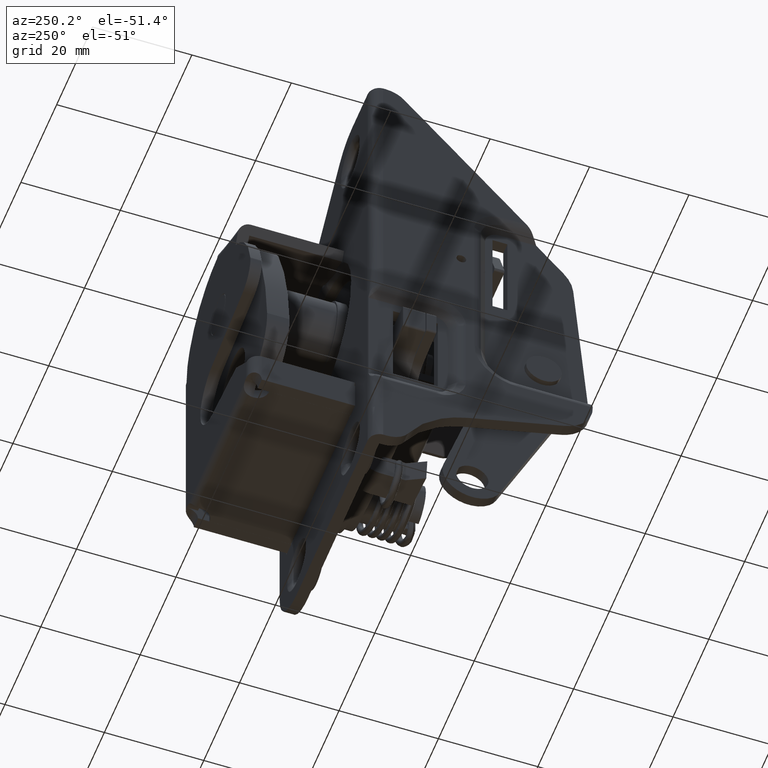
[diagram: clean part render]
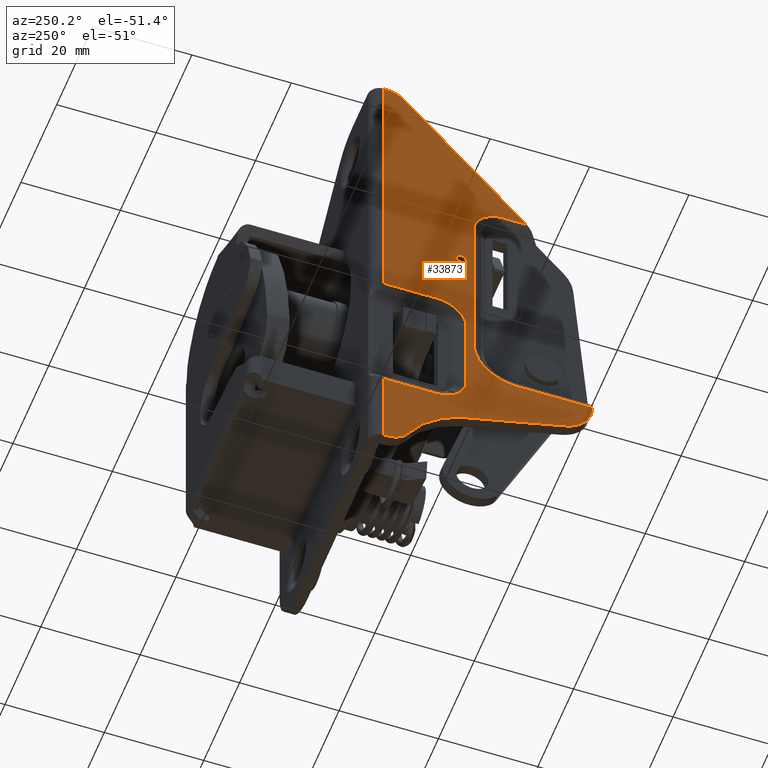
[diagram: same view with one face highlighted and labeled with its STEP entity id]
A machine part, auxiliary view. The second image highlights one B-rep face of the part: STEP entity #33873.
In plain terms, the highlighted face is a freeform B-spline surface patch.
Its self-contained STEP definition (entity closure, byte-faithful):
#27239=CARTESIAN_POINT('',(1.419714E-017,16.283349330598838,25.697431335802619));
#27240=VERTEX_POINT('',#27239);
#27246=CARTESIAN_POINT('',(0.0,17.0,26.0));
#27247=VERTEX_POINT('',#27246);
#27248=CARTESIAN_POINT('',(0.0,17.0,26.0));
#27249=CARTESIAN_POINT('',(1.978550E-018,16.900125733382779,26.000029547339441));
#27250=CARTESIAN_POINT('',(7.254840E-018,16.633786415291109,25.959819011314710));
#27251=CARTESIAN_POINT('',(1.190176E-017,16.399216609102151,25.817069460072851));
#27252=CARTESIAN_POINT('',(1.419714E-017,16.283349330598838,25.697431335802619));
#27253=B_SPLINE_CURVE_WITH_KNOTS('',3,(#27248,#27249,#27250,#27251,#27252),.UNSPECIFIED.,.F.,.U.,(4,1,4),(0.000000076723326,0.299637238209509,0.799009191752111),.UNSPECIFIED.);
#27254=EDGE_CURVE('',#27247,#27240,#27253,.T.);
#27256=CARTESIAN_POINT('',(0.0,17.999999999996358,25.000002700771301));
#27257=VERTEX_POINT('',#27256);
#27258=CARTESIAN_POINT('',(0.0,17.999999999996358,25.000002700771301));
#27259=CARTESIAN_POINT('',(0.0,18.000112848320640,25.122738762137288));
#27260=CARTESIAN_POINT('',(0.0,17.961843882105320,25.327180044209911));
#27261=CARTESIAN_POINT('',(0.0,17.821957639316711,25.588878455707441));
#27262=CARTESIAN_POINT('',(0.0,17.619718561186961,25.806728343205432));
#27263=CARTESIAN_POINT('',(0.0,17.335436932095931,25.963164026423929));
#27264=CARTESIAN_POINT('',(0.0,17.106352691545570,26.000039462947090));
#27265=CARTESIAN_POINT('',(0.0,17.0,26.0));
#27266=B_SPLINE_CURVE_WITH_KNOTS('',3,(#27258,#27259,#27260,#27261,#27262,#27263,#27264,#27265),.UNSPECIFIED.,.F.,.U.,(4,1,1,1,1,4),(0.000000281844217,0.368163191423545,0.613610741273622,0.883566257270461,1.251766178606309,1.570834222152832),.UNSPECIFIED.);
#27267=EDGE_CURVE('',#27257,#27247,#27266,.T.);
#27269=CARTESIAN_POINT('',(0.0,17.0,24.0));
#27270=VERTEX_POINT('',#27269);
#27271=CARTESIAN_POINT('',(0.0,17.0,24.0));
#27272=CARTESIAN_POINT('',(0.0,17.122736333625610,23.999889343013368));
#27273=CARTESIAN_POINT('',(0.0,17.327170617699501,24.038160849404779));
#27274=CARTESIAN_POINT('',(0.0,17.625305952941570,24.197411173478500));
#27275=CARTESIAN_POINT('',(0.0,17.843834262327459,24.426898267956751));
#27276=CARTESIAN_POINT('',(0.0,17.974435839994499,24.721856909492370));
#27277=CARTESIAN_POINT('',(0.0,18.000024125343192,24.910012288192220));
#27278=CARTESIAN_POINT('',(0.0,17.999999999996358,25.000002700771301));
#27279=B_SPLINE_CURVE_WITH_KNOTS('',3,(#27271,#27272,#27273,#27274,#27275,#27276,#27277,#27278),.UNSPECIFIED.,.F.,.U.,(4,1,1,1,1,4),(0.000000278164679,0.368163901596766,0.613611931807633,1.006310286854506,1.300859443302401,1.570837266627507),.UNSPECIFIED.);
#27280=EDGE_CURVE('',#27270,#27257,#27279,.T.);
#27282=CARTESIAN_POINT('',(1.387779E-017,16.262722094306859,24.324409417603459));
#27283=VERTEX_POINT('',#27282);
#27284=CARTESIAN_POINT('',(1.387779E-017,16.262722094306859,24.324409417603459));
#27285=CARTESIAN_POINT('',(1.168635E-017,16.379145231748112,24.196678181982360));
#27286=CARTESIAN_POINT('',(7.152616E-018,16.620006731859458,24.043285361546491));
#27287=CARTESIAN_POINT('',(1.950586E-018,16.896372226024940,23.999961610233399));
#27288=CARTESIAN_POINT('',(0.0,17.0,24.0));
#27289=B_SPLINE_CURVE_WITH_KNOTS('',3,(#27284,#27285,#27286,#27287,#27288),.UNSPECIFIED.,.F.,.U.,(4,1,4),(0.000000073294715,0.518148439487856,0.829054960137383),.UNSPECIFIED.);
#27290=EDGE_CURVE('',#27283,#27270,#27289,.T.);
#27369=CARTESIAN_POINT('',(0.0,16.000000000003649,24.999997299228710));
#27370=VERTEX_POINT('',#27369);
#27371=CARTESIAN_POINT('',(0.0,16.000000000003649,24.999997299228710));
#27372=CARTESIAN_POINT('',(2.381095E-018,15.999929392125290,24.884082516545519));
#27373=CARTESIAN_POINT('',(7.458836E-018,16.043478793940661,24.636891674295370));
#27374=CARTESIAN_POINT('',(1.189021E-017,16.173867045975442,24.421167198646920));
#27375=CARTESIAN_POINT('',(1.387779E-017,16.262722094306859,24.324409417603459));
#27376=B_SPLINE_CURVE_WITH_KNOTS('',3,(#27371,#27372,#27373,#27374,#27375),.UNSPECIFIED.,.F.,.U.,(4,1,4),(0.000000053009387,0.347725959978242,0.741778975951771),.UNSPECIFIED.);
#27377=EDGE_CURVE('',#27370,#27283,#27376,.T.);
#27379=CARTESIAN_POINT('',(1.419714E-017,16.283349330598838,25.697431335802619));
#27380=CARTESIAN_POINT('',(1.279013E-017,16.216040811907710,25.628312020153171));
#27381=CARTESIAN_POINT('',(8.504259E-018,16.063497307439199,25.417768433751590));
#27382=CARTESIAN_POINT('',(3.274829E-018,15.999640118822070,25.160872970695650));
#27383=CARTESIAN_POINT('',(0.0,16.000000000003649,24.999997299228710));
#27384=B_SPLINE_CURVE_WITH_KNOTS('',3,(#27379,#27380,#27381,#27382,#27383),.UNSPECIFIED.,.F.,.U.,(4,1,4),(0.000000064619101,0.289443693527321,0.771828758472372),.UNSPECIFIED.);
#27385=EDGE_CURVE('',#27240,#27370,#27384,.T.);
#28997=CARTESIAN_POINT('',(0.0,32.700000000000003,10.952691193458120));
#28998=VERTEX_POINT('',#28997);
#29068=CARTESIAN_POINT('',(0.0,32.700000000000003,-17.952691193458101));
#29069=VERTEX_POINT('',#29068);
#29167=CARTESIAN_POINT('',(0.0,5.500000000000000,-8.952691193458040));
#29168=VERTEX_POINT('',#29167);
#29180=CARTESIAN_POINT('',(0.0,-9.450205466200819,-8.952691193458032));
#29181=VERTEX_POINT('',#29180);
#29182=CARTESIAN_POINT('',(0.0,5.500000000000000,-8.952691193458040));
#29183=CARTESIAN_POINT('',(0.0,-9.450205466200819,-8.952691193458032));
#29184=QUASI_UNIFORM_CURVE('',1,(#29182,#29183),.UNSPECIFIED.,.F.,.U.);
#29185=EDGE_CURVE('',#29168,#29181,#29184,.T.);
#29231=CARTESIAN_POINT('',(0.0,14.452691193458120,8.526513E-014));
#29232=VERTEX_POINT('',#29231);
#29244=CARTESIAN_POINT('',(0.0,14.452691193458120,8.526513E-014));
#29245=CARTESIAN_POINT('',(0.0,14.452888047882061,-0.732458276530794));
#29246=CARTESIAN_POINT('',(0.0,14.303499560320800,-1.940879319837317));
#29247=CARTESIAN_POINT('',(0.0,13.740063168773480,-3.611922105931522));
#29248=CARTESIAN_POINT('',(0.0,13.073716274471639,-4.840373025294561));
#29249=CARTESIAN_POINT('',(0.0,12.162824194807550,-6.037586426338524));
#29250=CARTESIAN_POINT('',(0.0,11.150094508349470,-7.001799874503031));
#29251=CARTESIAN_POINT('',(0.0,9.898220587559207,-7.838229307985565));
#29252=CARTESIAN_POINT('',(0.0,8.599237583223218,-8.442914151816376));
#29253=CARTESIAN_POINT('',(0.0,7.111341544849974,-8.854630042437410));
#29254=CARTESIAN_POINT('',(0.0,6.049327049475961,-8.952749881377976));
#29255=CARTESIAN_POINT('',(0.0,5.500000000000000,-8.952691193458040));
#29256=B_SPLINE_CURVE_WITH_KNOTS('',3,(#29244,#29245,#29246,#29247,#29248,#29249,#29250,#29251,#29252,#29253,#29254,#29255),.UNSPECIFIED.,.F.,.U.,(4,1,1,1,1,1,1,1,1,4),(0.000000091344646,2.197323560096953,3.625603969368036,5.273619080635767,6.372272558643863,8.130113154966562,9.448537441364106,10.876812100355050,12.414964910769370,14.062942680058100),.UNSPECIFIED.);
#29257=EDGE_CURVE('',#29232,#29168,#29256,.T.);
#29291=CARTESIAN_POINT('',(0.0,14.452691193458120,35.0));
#29292=VERTEX_POINT('',#29291);
#29304=CARTESIAN_POINT('',(0.0,14.452691193458120,35.0));
#29305=CARTESIAN_POINT('',(0.0,14.452691193458120,8.526513E-014));
#29306=QUASI_UNIFORM_CURVE('',1,(#29304,#29305),.UNSPECIFIED.,.F.,.U.);
#29307=EDGE_CURVE('',#29292,#29232,#29306,.T.);
#29335=CARTESIAN_POINT('',(0.0,8.500000000000000,40.952691193458101));
#29336=VERTEX_POINT('',#29335);
#29347=CARTESIAN_POINT('',(0.0,8.500000000000000,40.952691193458101));
#29348=CARTESIAN_POINT('',(0.0,8.962657523383950,40.952792261028883));
#29349=CARTESIAN_POINT('',(0.0,9.668757335024830,40.869928497767241));
#29350=CARTESIAN_POINT('',(0.0,10.766033260378890,40.537109117600380));
#29351=CARTESIAN_POINT('',(0.0,11.685121071081900,40.074489090242103));
#29352=CARTESIAN_POINT('',(0.0,12.590662138058240,39.367731560310503));
#29353=CARTESIAN_POINT('',(0.0,13.340971939035660,38.529673280201223));
#29354=CARTESIAN_POINT('',(0.0,13.914024912913710,37.560150495116147));
#29355=CARTESIAN_POINT('',(0.0,14.342137965103531,36.363525650079303));
#29356=CARTESIAN_POINT('',(0.0,14.452859761404451,35.511367873598168));
#29357=CARTESIAN_POINT('',(0.0,14.452691193458120,35.0));
#29358=B_SPLINE_CURVE_WITH_KNOTS('',3,(#29347,#29348,#29349,#29350,#29351,#29352,#29353,#29354,#29355,#29356,#29357),.UNSPECIFIED.,.F.,.U.,(4,1,1,1,1,1,1,1,4),(0.000000123463044,1.387947787412965,2.118478463169031,3.433415868488113,4.456113533958796,5.551872501632872,6.793741497036548,7.816471655958068,9.350524131440539),.UNSPECIFIED.);
#29359=EDGE_CURVE('',#29336,#29292,#29358,.T.);
#29394=CARTESIAN_POINT('',(0.0,3.857822074112350,40.952691193458101));
#29395=VERTEX_POINT('',#29394);
#29409=CARTESIAN_POINT('',(0.0,3.857822074112350,40.952691193458101));
#29410=CARTESIAN_POINT('',(0.0,8.500000000000000,40.952691193458101));
#29411=QUASI_UNIFORM_CURVE('',1,(#29409,#29410),.UNSPECIFIED.,.F.,.U.);
#29412=EDGE_CURVE('',#29395,#29336,#29411,.T.);
#29437=CARTESIAN_POINT('',(0.0,22.0,-17.952691193458101));
#29438=VERTEX_POINT('',#29437);
#29439=CARTESIAN_POINT('',(0.0,32.700000000000003,-17.952691193458101));
#29440=CARTESIAN_POINT('',(0.0,22.0,-17.952691193458101));
#29441=QUASI_UNIFORM_CURVE('',1,(#29439,#29440),.UNSPECIFIED.,.F.,.U.);
#29442=EDGE_CURVE('',#29069,#29438,#29441,.T.);
#29482=CARTESIAN_POINT('',(0.0,16.047308806541899,-12.0));
#29483=VERTEX_POINT('',#29482);
#29506=CARTESIAN_POINT('',(0.0,22.0,-17.952691193458101));
#29507=CARTESIAN_POINT('',(0.0,21.634749118441601,-17.952724752475710));
#29508=CARTESIAN_POINT('',(0.0,20.879898801779490,-17.883016709020541));
#29509=CARTESIAN_POINT('',(0.0,19.916422546005801,-17.603621520092769));
#29510=CARTESIAN_POINT('',(0.0,19.012202960934690,-17.175934155681500));
#29511=CARTESIAN_POINT('',(0.0,18.161732315490749,-16.600152255128108));
#29512=CARTESIAN_POINT('',(0.0,17.421920342799151,-15.851169795087570));
#29513=CARTESIAN_POINT('',(0.0,16.795084332263240,-14.949372656584339));
#29514=CARTESIAN_POINT('',(0.0,16.226681235962779,-13.728642271425130));
#29515=CARTESIAN_POINT('',(0.0,16.046892183450581,-12.657507259688790));
#29516=CARTESIAN_POINT('',(0.0,16.047308806541899,-12.0));
#29517=B_SPLINE_CURVE_WITH_KNOTS('',3,(#29506,#29507,#29508,#29509,#29510,#29511,#29512,#29513,#29514,#29515,#29516),.UNSPECIFIED.,.F.,.U.,(4,1,1,1,1,1,1,1,4),(0.000000123461952,1.095755485874078,2.264579772262074,2.995099522537981,4.090890041220280,5.332722137895943,6.136270505482694,7.378157325394110,9.350524131440508),.UNSPECIFIED.);
#29518=EDGE_CURVE('',#29438,#29483,#29517,.T.);
#29539=CARTESIAN_POINT('',(0.0,16.047308806541899,5.0));
#29540=VERTEX_POINT('',#29539);
#29555=CARTESIAN_POINT('',(0.0,16.047308806541899,-12.0));
#29556=CARTESIAN_POINT('',(0.0,16.047308806541899,5.0));
#29557=QUASI_UNIFORM_CURVE('',1,(#29555,#29556),.UNSPECIFIED.,.F.,.U.);
#29558=EDGE_CURVE('',#29483,#29540,#29557,.T.);
#29582=CARTESIAN_POINT('',(0.0,22.0,10.952691193458120));
#29583=VERTEX_POINT('',#29582);
#29608=CARTESIAN_POINT('',(0.0,16.047308806541899,5.0));
#29609=CARTESIAN_POINT('',(0.0,16.047285205004592,5.365247926158874));
#29610=CARTESIAN_POINT('',(0.0,16.121440009057601,6.168811817258397));
#29611=CARTESIAN_POINT('',(0.0,16.448581009048599,7.247225922557664));
#29612=CARTESIAN_POINT('',(0.0,17.017715541164769,8.327925342596554));
#29613=CARTESIAN_POINT('',(0.0,17.774052229049740,9.261206328256165));
#29614=CARTESIAN_POINT('',(0.0,18.657677534130229,9.959459868772717));
#29615=CARTESIAN_POINT('',(0.0,19.662197121009431,10.512423676356550));
#29616=CARTESIAN_POINT('',(0.0,20.733775017324110,10.866404008232330));
#29617=CARTESIAN_POINT('',(0.0,21.610403449548080,10.952722371612380));
#29618=CARTESIAN_POINT('',(0.0,22.0,10.952691193458120));
#29619=B_SPLINE_CURVE_WITH_KNOTS('',3,(#29608,#29609,#29610,#29611,#29612,#29613,#29614,#29615,#29616,#29617,#29618),.UNSPECIFIED.,.F.,.U.,(4,1,1,1,1,1,1,1,4),(0.000000123470894,1.095755485881645,2.410684327598800,3.360352761038337,4.748272259294761,5.990173454359868,6.720685162597633,8.181715368752407,9.350524131440533),.UNSPECIFIED.);
#29620=EDGE_CURVE('',#29540,#29583,#29619,.T.);
#29645=CARTESIAN_POINT('',(0.0,22.0,10.952691193458120));
#29646=CARTESIAN_POINT('',(0.0,32.700000000000003,10.952691193458120));
#29647=QUASI_UNIFORM_CURVE('',1,(#29645,#29646),.UNSPECIFIED.,.F.,.U.);
#29648=EDGE_CURVE('',#29583,#28998,#29647,.T.);
#31291=CARTESIAN_POINT('',(0.0,32.700000000000003,70.0));
#31292=VERTEX_POINT('',#31291);
#31293=CARTESIAN_POINT('',(0.0,32.700000000000003,10.952691193458120));
#31294=CARTESIAN_POINT('',(0.0,32.700000000000003,70.0));
#31295=QUASI_UNIFORM_CURVE('',1,(#31293,#31294),.UNSPECIFIED.,.F.,.U.);
#31296=EDGE_CURVE('',#28998,#31292,#31295,.T.);
#31319=CARTESIAN_POINT('',(0.0,32.700000000000003,-35.0));
#31320=VERTEX_POINT('',#31319);
#31333=CARTESIAN_POINT('',(0.0,32.700000000000003,-35.0));
#31334=CARTESIAN_POINT('',(0.0,32.700000000000003,-17.952691193458101));
#31335=QUASI_UNIFORM_CURVE('',1,(#31333,#31334),.UNSPECIFIED.,.F.,.U.);
#31336=EDGE_CURVE('',#31320,#29069,#31335,.T.);
#33604=CARTESIAN_POINT('',(0.0,32.227212023536850,70.0));
#33605=VERTEX_POINT('',#33604);
#33606=CARTESIAN_POINT('',(0.0,32.700000000000003,70.0));
#33607=CARTESIAN_POINT('',(0.0,32.227212023536850,70.0));
#33608=QUASI_UNIFORM_CURVE('',1,(#33606,#33607),.UNSPECIFIED.,.F.,.U.);
#33609=EDGE_CURVE('',#31292,#33605,#33608,.T.);
#33649=CARTESIAN_POINT('',(0.0,31.997000000000000,-35.0));
#33650=VERTEX_POINT('',#33649);
#33656=CARTESIAN_POINT('',(0.0,31.997000000000000,-35.0));
#33657=CARTESIAN_POINT('',(0.0,32.700000000000003,-35.0));
#33658=QUASI_UNIFORM_CURVE('',1,(#33656,#33657),.UNSPECIFIED.,.F.,.U.);
#33659=EDGE_CURVE('',#33650,#31320,#33658,.T.);
#33680=CARTESIAN_POINT('',(0.0,27.597679200225301,-32.376126364626053));
#33681=VERTEX_POINT('',#33680);
#33687=CARTESIAN_POINT('',(0.0,27.597679200225301,-32.376126364626053));
#33688=CARTESIAN_POINT('',(0.0,27.850357416422838,-32.844555760595867));
#33689=CARTESIAN_POINT('',(0.0,28.351759252042669,-33.496691083622864));
#33690=CARTESIAN_POINT('',(0.0,29.297534415739989,-34.249349918645692));
#33691=CARTESIAN_POINT('',(0.0,30.428702043389269,-34.824970240064268));
#33692=CARTESIAN_POINT('',(0.0,31.408737476887069,-35.000414573552192));
#33693=CARTESIAN_POINT('',(0.0,31.997000000000000,-35.0));
#33694=B_SPLINE_CURVE_WITH_KNOTS('',3,(#33687,#33688,#33689,#33690,#33691,#33692,#33693),.UNSPECIFIED.,.F.,.U.,(4,1,1,1,4),(0.000000056120015,1.596578865770828,2.436907447740727,3.613297911995456,5.377944687867363),.UNSPECIFIED.);
#33695=EDGE_CURVE('',#33681,#33650,#33694,.T.);
#33715=CARTESIAN_POINT('',(0.0,15.746452421874899,-22.723835754643648));
#33716=VERTEX_POINT('',#33715);
#33722=CARTESIAN_POINT('',(0.0,27.597679200225301,-32.376126364626053));
#33723=CARTESIAN_POINT('',(0.0,27.015503887419658,-31.297999194667600));
#33724=CARTESIAN_POINT('',(0.0,25.970206978026010,-29.727382978095580));
#33725=CARTESIAN_POINT('',(0.0,23.956761808274159,-27.468519438994630));
#33726=CARTESIAN_POINT('',(0.0,22.057230502401591,-25.842381540848219));
#33727=CARTESIAN_POINT('',(0.0,19.234077647591629,-24.032230535202071));
#33728=CARTESIAN_POINT('',(0.0,17.194025428263110,-23.157706923353661));
#33729=CARTESIAN_POINT('',(0.0,15.746452421874899,-22.723835754643648));
#33730=B_SPLINE_CURVE_WITH_KNOTS('',3,(#33722,#33723,#33724,#33725,#33726,#33727,#33728,#33729),.UNSPECIFIED.,.F.,.U.,(4,1,1,1,1,4),(0.000000018597770,3.675786163481297,5.636208980521856,9.066932852458480,11.149881513092851,15.683355230144070),.UNSPECIFIED.);
#33731=EDGE_CURVE('',#33681,#33716,#33730,.T.);
#33744=CARTESIAN_POINT('',(0.0,-3.752842376635540,-16.875047278926100));
#33745=VERTEX_POINT('',#33744);
#33751=CARTESIAN_POINT('',(0.0,-3.752842376635540,-16.875047278926100));
#33752=CARTESIAN_POINT('',(0.0,15.746452421874899,-22.723835754643648));
#33753=QUASI_UNIFORM_CURVE('',1,(#33751,#33752),.UNSPECIFIED.,.F.,.U.);
#33754=EDGE_CURVE('',#33745,#33716,#33753,.T.);
#33774=CARTESIAN_POINT('',(0.0,-9.450205466200819,-8.952691193458032));
#33775=CARTESIAN_POINT('',(0.0,-9.467105035917369,-9.471688146844379));
#33776=CARTESIAN_POINT('',(0.0,-9.397590489428392,-10.540366085179370));
#33777=CARTESIAN_POINT('',(0.0,-8.959141310041261,-12.157924255592601));
#33778=CARTESIAN_POINT('',(0.0,-8.260577291357899,-13.499689132300860));
#33779=CARTESIAN_POINT('',(0.0,-7.371210357022950,-14.647095339988709));
#33780=CARTESIAN_POINT('',(0.0,-6.369585854016193,-15.585196415070930));
#33781=CARTESIAN_POINT('',(0.0,-5.115574654249417,-16.376586438600508));
#33782=CARTESIAN_POINT('',(0.0,-4.197878164604864,-16.741597592644421));
#33783=CARTESIAN_POINT('',(0.0,-3.752842376635540,-16.875047278926100));
#33784=B_SPLINE_CURVE_WITH_KNOTS('',3,(#33774,#33775,#33776,#33777,#33778,#33779,#33780,#33781,#33782,#33783),.UNSPECIFIED.,.F.,.U.,(4,1,1,1,1,1,1,4),(0.000000083555223,1.557816430125174,3.197644376533220,5.001444843081019,6.067290083316820,7.543152239611359,9.100981790110835,10.494821834781920),.UNSPECIFIED.);
#33785=EDGE_CURVE('',#29181,#33745,#33784,.T.);
#33815=CARTESIAN_POINT('',(0.0,28.510741292300949,68.344823658112190));
#33816=VERTEX_POINT('',#33815);
#33817=CARTESIAN_POINT('',(0.0,32.227212023536850,70.0));
#33818=CARTESIAN_POINT('',(0.0,31.637948975597158,70.000443821033770));
#33819=CARTESIAN_POINT('',(0.0,30.634410390709458,69.820447603389795));
#33820=CARTESIAN_POINT('',(0.0,29.384716551899700,69.172950804886810));
#33821=CARTESIAN_POINT('',(0.0,28.773452446812119,68.636853776732835));
#33822=CARTESIAN_POINT('',(0.0,28.510741292300949,68.344823658112190));
#33823=B_SPLINE_CURVE_WITH_KNOTS('',3,(#33817,#33818,#33819,#33820,#33821,#33822),.UNSPECIFIED.,.F.,.U.,(4,1,1,4),(0.000000042646898,1.767643953155662,3.011514816335939,4.189936052756754),.UNSPECIFIED.);
#33824=EDGE_CURVE('',#33605,#33816,#33823,.T.);
#33834=CARTESIAN_POINT('',(0.0,-11.559506742886240,-40.244749796489629));
#33835=CARTESIAN_POINT('',(0.0,34.805589282479943,-40.244749796489629));
#33836=CARTESIAN_POINT('',(0.0,-11.559506742886240,75.244752612809094));
#33837=CARTESIAN_POINT('',(0.0,34.805589282479943,75.244752612809094));
#33838=B_SPLINE_SURFACE_WITH_KNOTS('',1,1,((#33834,#33836),(#33835,#33837)),.UNSPECIFIED.,.F.,.F.,.U.,(2,2),(2,2),(0.0,46.365096025366178),(0.0,115.489502409298690),.UNSPECIFIED.);
#33839=ORIENTED_EDGE('',*,*,#31336,.F.);
#33840=ORIENTED_EDGE('',*,*,#33659,.F.);
#33841=ORIENTED_EDGE('',*,*,#33695,.F.);
#33842=ORIENTED_EDGE('',*,*,#33731,.T.);
#33843=ORIENTED_EDGE('',*,*,#33754,.F.);
#33844=ORIENTED_EDGE('',*,*,#33785,.F.);
#33845=ORIENTED_EDGE('',*,*,#29185,.F.);
#33846=ORIENTED_EDGE('',*,*,#29257,.F.);
#33847=ORIENTED_EDGE('',*,*,#29307,.F.);
#33848=ORIENTED_EDGE('',*,*,#29359,.F.);
#33849=ORIENTED_EDGE('',*,*,#29412,.F.);
#33850=CARTESIAN_POINT('',(0.0,28.510741292300949,68.344823658112190));
#33851=CARTESIAN_POINT('',(0.0,3.857822074112350,40.952691193458101));
#33852=QUASI_UNIFORM_CURVE('',1,(#33850,#33851),.UNSPECIFIED.,.F.,.U.);
#33853=EDGE_CURVE('',#33816,#29395,#33852,.T.);
#33854=ORIENTED_EDGE('',*,*,#33853,.F.);
#33855=ORIENTED_EDGE('',*,*,#33824,.F.);
#33856=ORIENTED_EDGE('',*,*,#33609,.F.);
#33857=ORIENTED_EDGE('',*,*,#31296,.F.);
#33858=ORIENTED_EDGE('',*,*,#29648,.F.);
#33859=ORIENTED_EDGE('',*,*,#29620,.F.);
#33860=ORIENTED_EDGE('',*,*,#29558,.F.);
#33861=ORIENTED_EDGE('',*,*,#29518,.F.);
#33862=ORIENTED_EDGE('',*,*,#29442,.F.);
#33863=EDGE_LOOP('',(#33839,#33840,#33841,#33842,#33843,#33844,#33845,#33846,#33847,#33848,#33849,#33854,#33855,#33856,#33857,#33858,#33859,#33860,#33861,#33862));
#33864=FACE_OUTER_BOUND('',#33863,.T.);
#33865=ORIENTED_EDGE('',*,*,#27280,.T.);
#33866=ORIENTED_EDGE('',*,*,#27267,.T.);
#33867=ORIENTED_EDGE('',*,*,#27254,.T.);
#33868=ORIENTED_EDGE('',*,*,#27385,.T.);
#33869=ORIENTED_EDGE('',*,*,#27377,.T.);
#33870=ORIENTED_EDGE('',*,*,#27290,.T.);
#33871=EDGE_LOOP('',(#33865,#33866,#33867,#33868,#33869,#33870));
#33872=FACE_BOUND('',#33871,.T.);
#33873=ADVANCED_FACE('',(#33864,#33872),#33838,.F.);